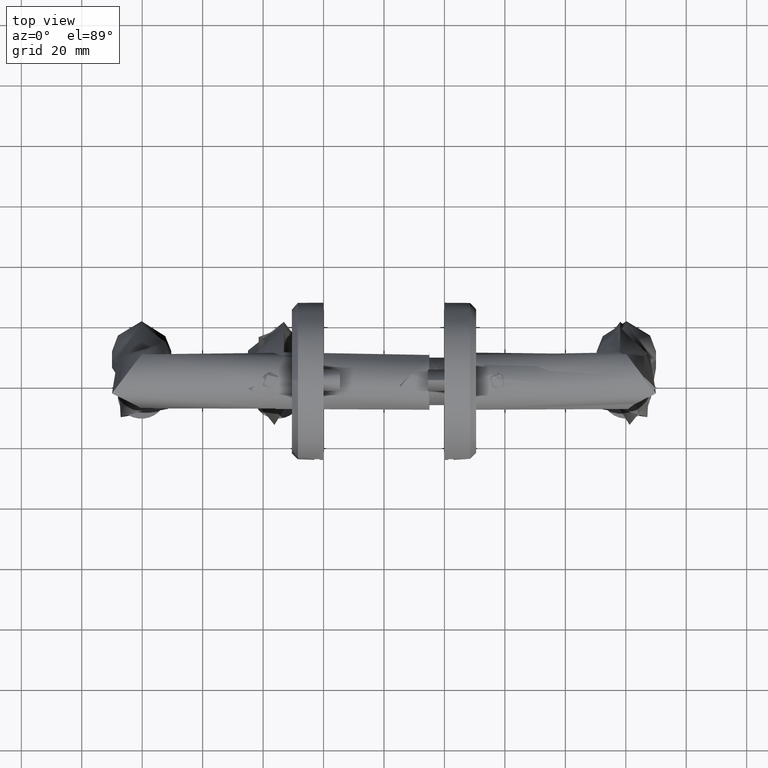
[diagram: clean part render]
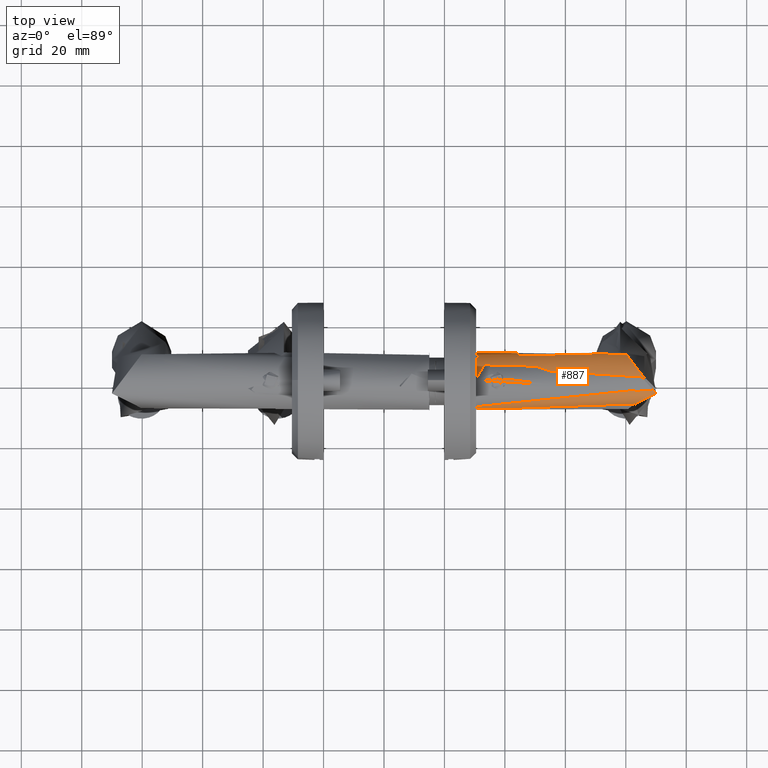
[diagram: same view with one face highlighted and labeled with its STEP entity id]
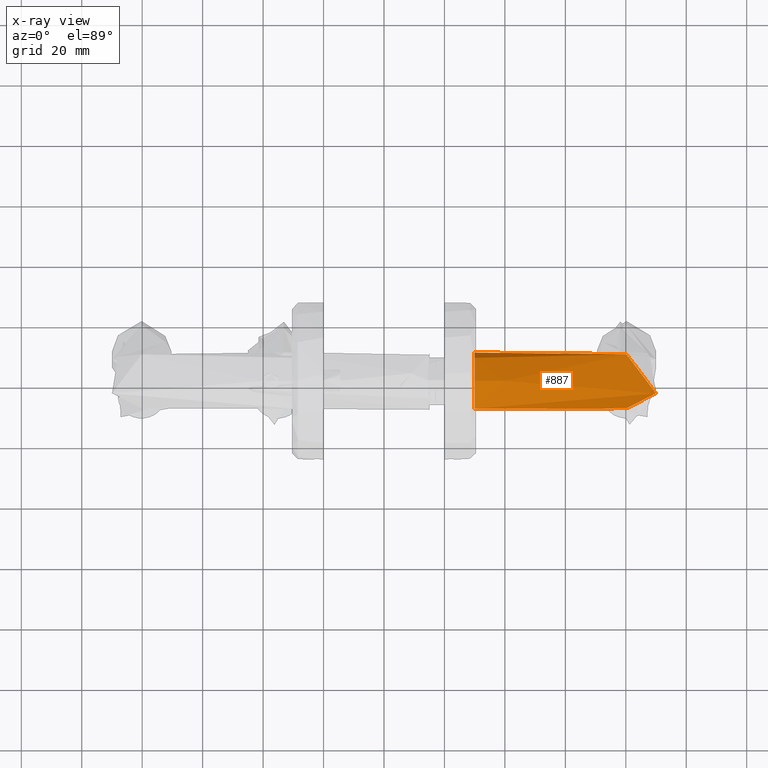
[diagram: x-ray of the same camera — body ghosted, the highlighted face saturated]
A machine part, top view. The second image highlights one B-rep face of the part: STEP entity #887.
The next image is the same camera in x-ray: the body ghosted, the highlighted face saturated — about 0% of this face is hidden behind the body in this view.
In plain terms, the highlighted cylindrical surface (bore or boss wall) has radius 9.8 mm, axis along (-1, 0, -0).
Its self-contained STEP definition (entity closure, byte-faithful):
#887 = ADVANCED_FACE ( 'NONE', ( #43726, #44795, #82602 ), #7987, .T. ) ;
#1437 = ORIENTED_EDGE ( 'NONE', *, *, #13533, .F. ) ;
#1781 = CARTESIAN_POINT ( 'NONE',  ( -0.2455063996937701400, 2.183613694649700700, -23.76004896875773700 ) ) ;
#2020 = EDGE_CURVE ( 'NONE', #64587, #64587, #59349, .T. ) ;
#2069 = CARTESIAN_POINT ( 'NONE',  ( -0.2032424808274733700, 1.999407976831236500, -20.96391534963096200 ) ) ;
#2368 = CARTESIAN_POINT ( 'NONE',  ( -26.97882352941176600, -13.60470588235293800, -55.40235294117646700 ) ) ;
#2631 = CARTESIAN_POINT ( 'NONE',  ( -0.2029243739203627200, 1.997646156598979200, -24.03779371455450000 ) ) ;
#2923 = CARTESIAN_POINT ( 'NONE',  ( -0.004250202253373712400, 0.3305669260421797400, -20.01651629900148800 ) ) ;
#7987 = CYLINDRICAL_SURFACE ( 'NONE', #33091, 9.799999999999998900 ) ;
#8470 = CARTESIAN_POINT ( 'NONE',  ( -0.07965136943626678600, -1.254433874869354000, -20.33135150041483300 ) ) ;
#8771 = CARTESIAN_POINT ( 'NONE',  ( -0.004206600728481136100, 0.3288885871912474700, -24.98365174076650800 ) ) ;
#10206 = CARTESIAN_POINT ( 'NONE',  ( -0.3242633206209118400, -2.500082876720871400, -22.66364804458455100 ) ) ;
#11052 = CARTESIAN_POINT ( 'NONE',  ( -0.1816699612569174500, -1.881881833777884400, -20.84618805185602500 ) ) ;
#13533 = EDGE_CURVE ( 'NONE', #66641, #66641, #51113, .T. ) ;
#15263 = DIRECTION ( 'NONE',  ( -0.0000000000000000000, -0.0000000000000000000, 1.000000000000000000 ) ) ;
#15577 = CARTESIAN_POINT ( 'NONE',  ( -0.1184919881285197700, 1.525507332216829800, -24.48732178255458800 ) ) ;
#16441 = CARTESIAN_POINT ( 'NONE',  ( -0.3199367370857028000, 2.483849845290464000, -22.82804567491798100 ) ) ;
#16996 = CARTESIAN_POINT ( 'NONE',  ( -0.2456095496539108000, -2.184076996224839600, -23.75951784526065700 ) ) ;
#17172 = ORIENTED_EDGE ( 'NONE', *, *, #22797, .F. ) ;
#17281 = CARTESIAN_POINT ( 'NONE',  ( -0.1185305898498486600, -1.525756175294356700, -20.51286418312086500 ) ) ;
#17847 = CARTESIAN_POINT ( 'NONE',  ( -0.07973867492358741000, -1.255165081136400600, -24.66827510110778100 ) ) ;
#22056 = CARTESIAN_POINT ( 'NONE',  ( -0.07963079918187807000, 1.254269749442053800, -24.66873877719234900 ) ) ;
#22365 = CARTESIAN_POINT ( 'NONE',  ( -18.67764705882352800, 4.150588235294116600, -55.40235294117646000 ) ) ;
#22797 = EDGE_CURVE ( 'NONE', #34083, #34083, #84037, .T. ) ;
#23225 = CARTESIAN_POINT ( 'NONE',  ( -0.06190163135836164500, 1.110142076600780600, -20.25405506944509400 ) ) ;
#23778 = CARTESIAN_POINT ( 'NONE',  ( -0.2422896661976814100, -2.167654281295327200, -21.24395163845300900 ) ) ;
#24050 = CARTESIAN_POINT ( 'NONE',  ( -0.1187946192722003500, -1.527475690427675600, -24.48586865379879600 ) ) ;
#24623 = CARTESIAN_POINT ( 'NONE',  ( -0.3242194218421904900, -2.499916487007193000, -22.33382951237097600 ) ) ;
#28842 = CARTESIAN_POINT ( 'NONE',  ( -10.37647058823529500, 21.90588235294117300, -55.40235294117646700 ) ) ;
#29117 = CARTESIAN_POINT ( 'NONE',  ( -0.3033394374289641900, 2.419614371200400800, -21.85016751565414200 ) ) ;
#29692 = CARTESIAN_POINT ( 'NONE',  ( -0.03222526855719955200, 0.8084961451052996600, -24.87131909482302600 ) ) ;
#29711 = CARTESIAN_POINT ( 'NONE',  ( 7.378823529411763900, 13.60470588235293800, -75.00235294117646800 ) ) ;
#29979 = CARTESIAN_POINT ( 'NONE',  ( -0.02035144488384434500, -0.6515257115221737600, -24.91919392793285900 ) ) ;
#30531 = CARTESIAN_POINT ( 'NONE',  ( -6.352747104407197700E-019, -3.659182332138577500E-016, -25.00000000000000000 ) ) ;
#33091 = AXIS2_PLACEMENT_3D ( 'NONE', #35839, #15263, #48991 ) ;
#33192 = CARTESIAN_POINT ( 'NONE',  ( 0.0000000000000000000, 0.0000000000000000000, -24.99999999999999600 ) ) ;
#33631 = AXIS2_PLACEMENT_3D ( 'NONE', #56316, #67757, #41079 ) ;
#34083 = VERTEX_POINT ( 'NONE', #33192 ) ;
#35839 = CARTESIAN_POINT ( 'NONE',  ( -9.799999999999998900, 0.0000000000000000000, -92.92093876368913600 ) ) ;
#36424 = CARTESIAN_POINT ( 'NONE',  ( -0.03222695651067845900, 0.8084460640412489700, -20.12869254990818000 ) ) ;
#37826 = CARTESIAN_POINT ( 'NONE',  ( -1.270549420881441800E-018, -0.1658972328802226200, -25.00000000000001100 ) ) ;
#41079 = DIRECTION ( 'NONE',  ( 1.000000000000000000, 0.0000000000000000000, 0.0000000000000000000 ) ) ;
#41204 = EDGE_LOOP ( 'NONE', ( #68324 ) ) ;
#41996 = CARTESIAN_POINT ( 'NONE',  ( 3.534584798808543900E-005, -0.3260372883747064100, -19.99986144426421600 ) ) ;
#42369 = EDGE_LOOP ( 'NONE', ( #1437 ) ) ;
#42869 = CARTESIAN_POINT ( 'NONE',  ( -0.02022001733421039900, 0.6493377508243620700, -24.91972191740115900 ) ) ;
#43700 = CARTESIAN_POINT ( 'NONE',  ( -0.2603281164761374100, -2.244750030947458600, -21.38724060680304400 ) ) ;
#43726 = FACE_BOUND ( 'NONE', #78317, .T. ) ;
#44250 = CARTESIAN_POINT ( 'NONE',  ( -0.3032269662662330800, -2.419173245366686300, -21.84866898483573600 ) ) ;
#44532 = CARTESIAN_POINT ( 'NONE',  ( -0.3034912852203756600, -2.420208203775282600, -23.14761672029454700 ) ) ;
#44795 = FACE_OUTER_BOUND ( 'NONE', #42369, .T. ) ;
#48702 = CARTESIAN_POINT ( 'NONE',  ( -0.01731965858525354900, -0.6563310331507712400, -20.06575289623684500 ) ) ;
#48991 = DIRECTION ( 'NONE',  ( -1.000000000000000000, 0.0000000000000000000, 0.0000000000000000000 ) ) ;
#49003 = CARTESIAN_POINT ( 'NONE',  ( -0.2909172645024580300, 2.370964932448639900, -23.30931967224397600 ) ) ;
#49300 = CARTESIAN_POINT ( 'NONE',  ( -0.2454372364567606300, 2.183371196653804100, -21.23870489699665900 ) ) ;
#49581 = CARTESIAN_POINT ( 'NONE',  ( -0.3242138757993623400, 2.499895465810965800, -22.66538655990790800 ) ) ;
#49603 = CARTESIAN_POINT ( 'NONE',  ( -18.67764705882352800, 4.150588235294116600, -55.40235294117646000 ) ) ;
#50152 = CARTESIAN_POINT ( 'NONE',  ( -0.2030856745485050700, -1.986903957928885900, -20.97402646427620400 ) ) ;
#51113 = CIRCLE ( 'NONE', #33631, 9.799999999999998900 ) ;
#55777 = CARTESIAN_POINT ( 'NONE',  ( -9.223529411764705100, -21.90588235294117300, -75.00235294117646800 ) ) ;
#56316 = CARTESIAN_POINT ( 'NONE',  ( -9.799999999999998900, 0.0000000000000000000, -15.00000000000000000 ) ) ;
#56340 = CARTESIAN_POINT ( 'NONE',  ( -0.2912225103693277300, 2.372202668177644000, -21.69399238161152300 ) ) ;
#57195 = CARTESIAN_POINT ( 'NONE',  ( -0.06210011086398008200, -1.111831946282840500, -24.74508435555669200 ) ) ;
#57470 = CARTESIAN_POINT ( 'NONE',  ( -0.3197977296668118600, -2.483316765722873000, -22.16868576322079700 ) ) ;
#58033 = CARTESIAN_POINT ( 'NONE',  ( -0.2910079100899647400, -2.371352310552508500, -21.69140591900263700 ) ) ;
#59349 =( BOUNDED_CURVE ( )  B_SPLINE_CURVE ( 3, ( #22365, #2368, #55777, #62558, #29711, #28842, #49603 ),
 .UNSPECIFIED., .T., .F. ) 
 B_SPLINE_CURVE_WITH_KNOTS ( ( 4, 3, 4 ),
 ( 0.0000000000000000000, 3.141592653589793100, 6.283185307179586200 ),
 .UNSPECIFIED. ) 
 CURVE ( )  GEOMETRIC_REPRESENTATION_ITEM ( )  RATIONAL_B_SPLINE_CURVE ( ( 1.000000000000000000, 0.3333333333333333700, 0.3333333333333333700, 1.000000000000000000, 0.3333333333333333700, 0.3333333333333333700, 1.000000000000000000 ) ) 
 REPRESENTATION_ITEM ( '' )  );
#62234 = CARTESIAN_POINT ( 'NONE',  ( -0.06167895857551284500, -1.108153674358352000, -20.25309595647252100 ) ) ;
#62535 = CARTESIAN_POINT ( 'NONE',  ( -0.3199001735057104800, 2.483707475874418900, -22.17134647831472100 ) ) ;
#62558 = CARTESIAN_POINT ( 'NONE',  ( -0.9223529411764713700, -4.150588235294117500, -75.00235294117646800 ) ) ;
#62828 = CARTESIAN_POINT ( 'NONE',  ( -0.1395580363200315000, 1.652182753594113400, -20.61662822935693700 ) ) ;
#63115 = CARTESIAN_POINT ( 'NONE',  ( -0.1397732700690463800, 1.653369955951830700, -24.38221085631508000 ) ) ;
#63401 = CARTESIAN_POINT ( 'NONE',  ( -0.3242687684831053200, 2.500103525782658500, -22.33778898141768100 ) ) ;
#63958 = CARTESIAN_POINT ( 'NONE',  ( -0.1393925503116251700, -1.651186141389332300, -20.61581383016147500 ) ) ;
#64587 = VERTEX_POINT ( 'NONE', #86532 ) ;
#64804 = CARTESIAN_POINT ( 'NONE',  ( -0.03243356118097258400, -0.8108701442688467400, -24.87045642218411600 ) ) ;
#66641 = VERTEX_POINT ( 'NONE', #86820 ) ;
#67757 = DIRECTION ( 'NONE',  ( -0.0000000000000000000, -0.0000000000000000000, 1.000000000000000000 ) ) ;
#68324 = ORIENTED_EDGE ( 'NONE', *, *, #2020, .T. ) ;
#69246 = CARTESIAN_POINT ( 'NONE',  ( -0.3032711140302980500, 2.419349083781709100, -23.15105608789601600 ) ) ;
#70115 = CARTESIAN_POINT ( 'NONE',  ( -0.06198656234479965600, 1.110938121098267600, -24.74558160778296000 ) ) ;
#70672 = CARTESIAN_POINT ( 'NONE',  ( -0.1399357609558007900, -1.654309899104500700, -24.38137536877045600 ) ) ;
#75407 = CARTESIAN_POINT ( 'NONE',  ( -1.775902691178471800E-005, 0.1646096896668791100, -20.00006961539132500 ) ) ;
#75993 = CARTESIAN_POINT ( 'NONE',  ( -0.1186920950575938900, 1.526728367811464000, -20.51366165276160900 ) ) ;
#76579 = CARTESIAN_POINT ( 'NONE',  ( -0.07993515577942272900, 1.256567421003657900, -20.33263342849847900 ) ) ;
#76866 = CARTESIAN_POINT ( 'NONE',  ( -0.004208627328968081400, -0.3293675719674993800, -24.98364691859731900 ) ) ;
#78317 = EDGE_LOOP ( 'NONE', ( #17172 ) ) ;
#82129 = CARTESIAN_POINT ( 'NONE',  ( 0.0000000000000000000, 0.1658972328802212900, -24.99999999999999300 ) ) ;
#82427 = CARTESIAN_POINT ( 'NONE',  ( -6.352747104407197700E-019, -3.659182332138577500E-016, -25.00000000000000000 ) ) ;
#82602 = FACE_OUTER_BOUND ( 'NONE', #41204, .T. ) ;
#83297 = CARTESIAN_POINT ( 'NONE',  ( -0.02042295698648082700, 0.6525806098935196300, -20.08109439346856100 ) ) ;
#83589 = CARTESIAN_POINT ( 'NONE',  ( -0.2030453551168196200, -1.998196917973325200, -24.03703193166804300 ) ) ;
#84037 = B_SPLINE_CURVE_WITH_KNOTS ( 'NONE', 3,
 ( #82427, #82129, #8771, #42869, #29692, #70115, #22056, #15577, #63115, #2631, #1781, #49003, #69246, #16441, #49581, #63401, #62535, #29117, #56340, #49300, #2069, #62828, #75993, #76579, #23225, #36424, #83297, #2923, #75407, #41996, #48702, #62234, #8470, #17281, #63958, #11052, #50152, #23778, #43700, #58033, #44250, #57470, #24623, #10206, #84150, #44532, #84430, #16996, #83589, #70672, #24050, #17847, #57195, #64804, #29979, #76866, #37826, #30531 ),
 .UNSPECIFIED., .T., .F.,
 ( 4, 2, 2, 2, 2, 2, 2, 2, 2, 2, 2, 2, 2, 2, 2, 2, 2, 2, 2, 2, 2, 2, 2, 2, 2, 2, 2, 2, 4 ),
 ( 0.0000000000000000000, 0.0004904772195936914400, 0.0009809544391873828900, 0.001471431658781074200, 0.001961908878374765800, 0.002942863317562155800, 0.003433340537155851100, 0.003923817756749547200, 0.004414294976343242400, 0.004904772195936938500, 0.005885726635124329000, 0.006376203854718027700, 0.006866681074311725500, 0.007357158293905425100, 0.007847635513499123800, 0.008828589952686519500, 0.009319067172280218200, 0.009809544391873916900, 0.01030002161146761600, 0.01079049883106131400, 0.01128097605065501300, 0.01177145327024871000, 0.01226193048984240900, 0.01275240770943610700, 0.01373336214862350500, 0.01422383936821720200, 0.01471431658781089700, 0.01520479380740459100, 0.01569527102699828600 ),
 .UNSPECIFIED. ) ;
#84150 = CARTESIAN_POINT ( 'NONE',  ( -0.3199790666396094600, -2.484006566528221600, -22.82638404291712300 ) ) ;
#84430 = CARTESIAN_POINT ( 'NONE',  ( -0.2911054904295659600, -2.371722476732262200, -23.30720311901970400 ) ) ;
#86532 = CARTESIAN_POINT ( 'NONE',  ( -18.67764705882352800, 4.150588235294116600, -55.40235294117646000 ) ) ;
#86820 = CARTESIAN_POINT ( 'NONE',  ( 0.0000000000000000000, 0.0000000000000000000, -15.00000000000000000 ) ) ;